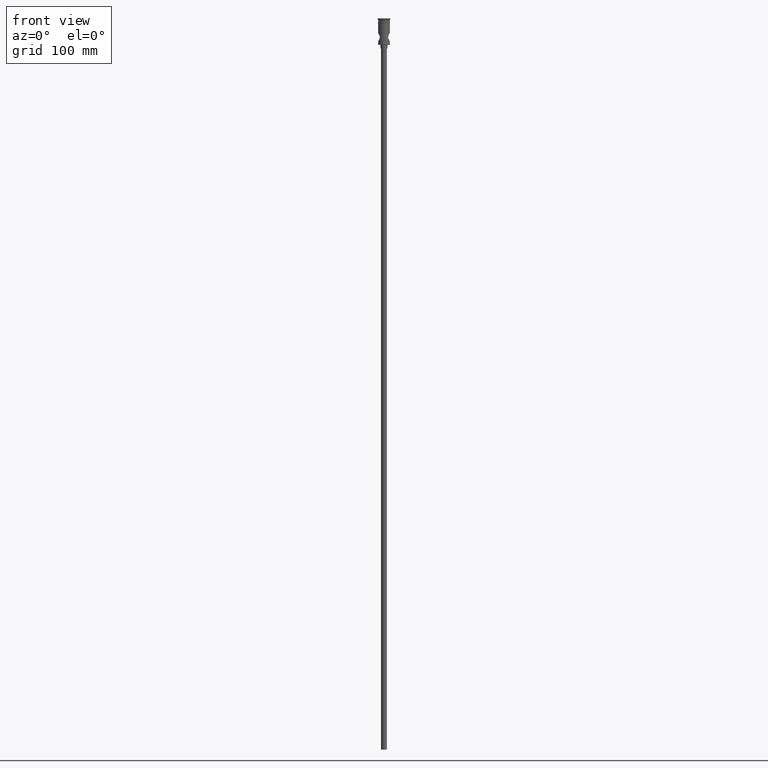
[diagram: clean part render]
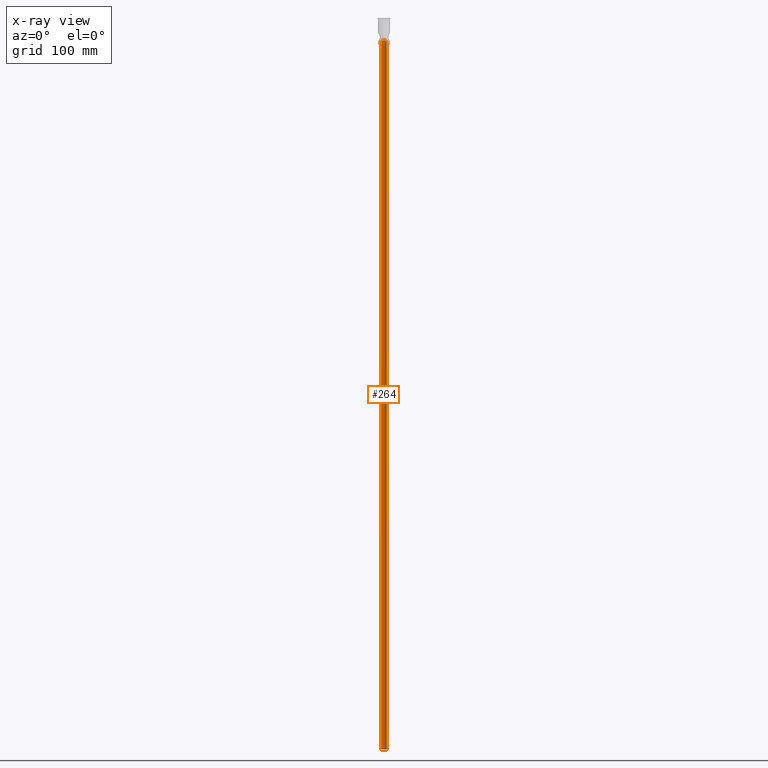
[diagram: x-ray — body ghosted, one internal face saturated and labeled with its STEP entity id]
A machine part, front view, then the same camera in x-ray: the body is ghosted and one INTERNAL B-rep face — a face not visible from any outside direction — is saturated and labeled: STEP entity #264.
In plain terms, the highlighted cylindrical surface (edge-blend (fillet) strip) has radius 2.25 mm, axis along (-0, -0, -1).
Its self-contained STEP definition (entity closure, byte-faithful):
#34 = EDGE_CURVE ( 'NONE', #677, #941, #1012, .T. ) ;
#90 = B_SPLINE_CURVE_WITH_KNOTS ( 'NONE', 3,
 ( #245, #1160, #269, #803, #727, #138, #719, #394, #481, #144, #499, #370, #597, #834, #939, #473, #1280, #279, #1361, #361, #1251, #1148, #132, #1369, #813, #522, #1415, #1293, #1065, #631, #1309, #1433 ),
 .UNSPECIFIED., .F., .F.,
 ( 4, 2, 2, 2, 2, 2, 2, 2, 2, 2, 2, 2, 2, 2, 2, 4 ),
 ( 0.007250279371620002231, 0.007702898212976278663, 0.008155517054332555096, 0.009060754737045109697, 0.009513373578401387864, 0.009965992419757666032, 0.01041861126111394246, 0.01087123010247022063, 0.01132384894382649880, 0.01177646778518277697, 0.01222908662653905687, 0.01268170546789533504, 0.01313432430925161321, 0.01358694315060789137, 0.01403956199196416954, 0.01449218083332044944 ),
 .UNSPECIFIED. ) ;
#122 = CIRCLE ( 'NONE', #322, 2.250000000000000444 ) ;
#132 = CARTESIAN_POINT ( 'NONE',  ( -1.486101087930515652, 1.695403733361556586, -19.06405166588539757 ) ) ;
#134 = CARTESIAN_POINT ( 'NONE',  ( 2.250000000000000444, 2.755455298081544778E-16, -622.4999999999998863 ) ) ;
#138 = CARTESIAN_POINT ( 'NONE',  ( 1.955634544950294096, 1.151442147577716124, -19.31717052018207426 ) ) ;
#144 = CARTESIAN_POINT ( 'NONE',  ( 1.137018291772383005, 1.946832527748922681, -18.91011232143838683 ) ) ;
#177 = EDGE_CURVE ( 'NONE', #258, #847, #339, .T. ) ;
#201 = CARTESIAN_POINT ( 'NONE',  ( -2.250000000000000444, 0.000000000000000000, -622.4999999999998863 ) ) ;
#210 = CARTESIAN_POINT ( 'NONE',  ( -2.250000000000000444, 0.000000000000000000, -19.50000000000000000 ) ) ;
#211 = EDGE_LOOP ( 'NONE', ( #1079, #662, #574, #830 ) ) ;
#244 = VECTOR ( 'NONE', #780, 1000.000000000000000 ) ;
#245 = CARTESIAN_POINT ( 'NONE',  ( 2.250000000000000444, 1.892513914771209576E-20, -19.50000000000000000 ) ) ;
#258 = VERTEX_POINT ( 'NONE', #1386 ) ;
#261 = FACE_OUTER_BOUND ( 'NONE', #211, .T. ) ;
#264 = ADVANCED_FACE ( 'NONE', ( #261 ), #385, .F. ) ;
#268 = DIRECTION ( 'NONE',  ( -1.000000000000000000, 0.000000000000000000, 0.000000000000000000 ) ) ;
#269 = CARTESIAN_POINT ( 'NONE',  ( 2.234602344594331491, 0.3033102270919886823, -19.49004238790224264 ) ) ;
#279 = CARTESIAN_POINT ( 'NONE',  ( -0.5978997219343202829, 2.174283081029379616, -18.74298936302307084 ) ) ;
#322 = AXIS2_PLACEMENT_3D ( 'NONE', #1228, #1362, #532 ) ;
#339 = LINE ( 'NONE', #543, #244 ) ;
#347 = CARTESIAN_POINT ( 'NONE',  ( -2.250000000000000444, 0.000000000000000000, 0.001000000000028755665 ) ) ;
#361 = CARTESIAN_POINT ( 'NONE',  ( -1.010948936431294465, 2.015446760058331677, -18.86234178184922428 ) ) ;
#370 = CARTESIAN_POINT ( 'NONE',  ( 0.7394799681105336253, 2.130006936881565061, -18.77813085036313723 ) ) ;
#385 = CYLINDRICAL_SURFACE ( 'NONE', #1022, 2.250000000000000444 ) ;
#394 = CARTESIAN_POINT ( 'NONE',  ( 1.484258646410845373, 1.697053836921559533, -19.06314805567991755 ) ) ;
#414 = VECTOR ( 'NONE', #766, 1000.000000000000000 ) ;
#473 = CARTESIAN_POINT ( 'NONE',  ( -0.1500169204542479151, 2.250061825955684824, -18.68089943599752090 ) ) ;
#481 = CARTESIAN_POINT ( 'NONE',  ( 1.374440444067672074, 1.787143237862401479, -19.01081876934686932 ) ) ;
#488 = CARTESIAN_POINT ( 'NONE',  ( 0.000000000000000000, 0.000000000000000000, 0.001000000000028755665 ) ) ;
#499 = CARTESIAN_POINT ( 'NONE',  ( 1.008205844767431580, 2.016750145401540628, -18.86140864329544797 ) ) ;
#522 = CARTESIAN_POINT ( 'NONE',  ( -1.942436584114296760, 1.144722481710678030, -19.30999928086847461 ) ) ;
#532 = DIRECTION ( 'NONE',  ( -1.000000000000000000, 0.000000000000000000, 0.000000000000000000 ) ) ;
#543 = CARTESIAN_POINT ( 'NONE',  ( 2.250000000000000444, 2.755455298081544778E-16, 0.001000000000028755665 ) ) ;
#574 = ORIENTED_EDGE ( 'NONE', *, *, #34, .T. ) ;
#597 = CARTESIAN_POINT ( 'NONE',  ( 0.5987953167195502191, 2.174148723038048292, -18.74310093710721148 ) ) ;
#631 = CARTESIAN_POINT ( 'NONE',  ( -2.234060880844048302, 0.3071571285989715405, -19.48969469876804794 ) ) ;
#662 = ORIENTED_EDGE ( 'NONE', *, *, #1163, .T. ) ;
#677 = VERTEX_POINT ( 'NONE', #210 ) ;
#719 = CARTESIAN_POINT ( 'NONE',  ( 1.789075748201162108, 1.394191445469598722, -19.21833826051311434 ) ) ;
#727 = CARTESIAN_POINT ( 'NONE',  ( 2.129222258077476226, 0.7422054627007588223, -19.42330116567810094 ) ) ;
#740 = EDGE_CURVE ( 'NONE', #941, #847, #122, .T. ) ;
#766 = DIRECTION ( 'NONE',  ( -0.000000000000000000, -0.000000000000000000, -1.000000000000000000 ) ) ;
#780 = DIRECTION ( 'NONE',  ( -0.000000000000000000, -0.000000000000000000, -1.000000000000000000 ) ) ;
#802 = DIRECTION ( 'NONE',  ( -0.000000000000000000, -0.000000000000000000, -1.000000000000000000 ) ) ;
#803 = CARTESIAN_POINT ( 'NONE',  ( 2.173783163195007084, 0.6000929025867463018, -19.45141731343486313 ) ) ;
#813 = CARTESIAN_POINT ( 'NONE',  ( -1.779756883055182648, 1.384165770656526240, -19.21723016255077710 ) ) ;
#830 = ORIENTED_EDGE ( 'NONE', *, *, #740, .T. ) ;
#834 = CARTESIAN_POINT ( 'NONE',  ( 0.3017550044953464794, 2.234820444347879409, -18.69390107512714394 ) ) ;
#847 = VERTEX_POINT ( 'NONE', #134 ) ;
#939 = CARTESIAN_POINT ( 'NONE',  ( 0.1518657931922163529, 2.249937794229810883, -18.68100353014522952 ) ) ;
#941 = VERTEX_POINT ( 'NONE', #201 ) ;
#1012 = LINE ( 'NONE', #347, #414 ) ;
#1022 = AXIS2_PLACEMENT_3D ( 'NONE', #488, #802, #268 ) ;
#1065 = CARTESIAN_POINT ( 'NONE',  ( -2.172856605862467205, 0.6033802211928143144, -19.45083278368169033 ) ) ;
#1079 = ORIENTED_EDGE ( 'NONE', *, *, #177, .F. ) ;
#1148 = CARTESIAN_POINT ( 'NONE',  ( -1.374236491424306372, 1.787287347298053497, -19.01072979112705497 ) ) ;
#1160 = CARTESIAN_POINT ( 'NONE',  ( 2.250000000000000000, 0.1511344444814126664, -19.50000000000000355 ) ) ;
#1163 = EDGE_CURVE ( 'NONE', #258, #677, #90, .T. ) ;
#1228 = CARTESIAN_POINT ( 'NONE',  ( 0.000000000000000000, 0.000000000000000000, -622.4999999999998863 ) ) ;
#1251 = CARTESIAN_POINT ( 'NONE',  ( -1.137071909613136977, 1.946789528568158678, -18.91013753428407895 ) ) ;
#1280 = CARTESIAN_POINT ( 'NONE',  ( -0.3040462924481899809, 2.234400780072425263, -18.69424399713910390 ) ) ;
#1293 = CARTESIAN_POINT ( 'NONE',  ( -2.128305117303373795, 0.7445317478142488010, -19.42273635989037217 ) ) ;
#1309 = CARTESIAN_POINT ( 'NONE',  ( -2.250000000000000444, 0.1533011007607881504, -19.49999999999999289 ) ) ;
#1361 = CARTESIAN_POINT ( 'NONE',  ( -0.7405438485911071123, 2.129703782927348854, -18.77837864873280793 ) ) ;
#1362 = DIRECTION ( 'NONE',  ( 0.000000000000000000, 0.000000000000000000, -1.000000000000000000 ) ) ;
#1369 = CARTESIAN_POINT ( 'NONE',  ( -1.688509612554014439, 1.493929566933212660, -19.16717237916633465 ) ) ;
#1386 = CARTESIAN_POINT ( 'NONE',  ( 2.250000000000000444, 1.892513914771209576E-20, -19.50000000000000000 ) ) ;
#1415 = CARTESIAN_POINT ( 'NONE',  ( -2.013643463065571293, 1.014519689062937324, -19.35264097590579624 ) ) ;
#1433 = CARTESIAN_POINT ( 'NONE',  ( -2.250000000000000444, 0.000000000000000000, -19.50000000000000000 ) ) ;